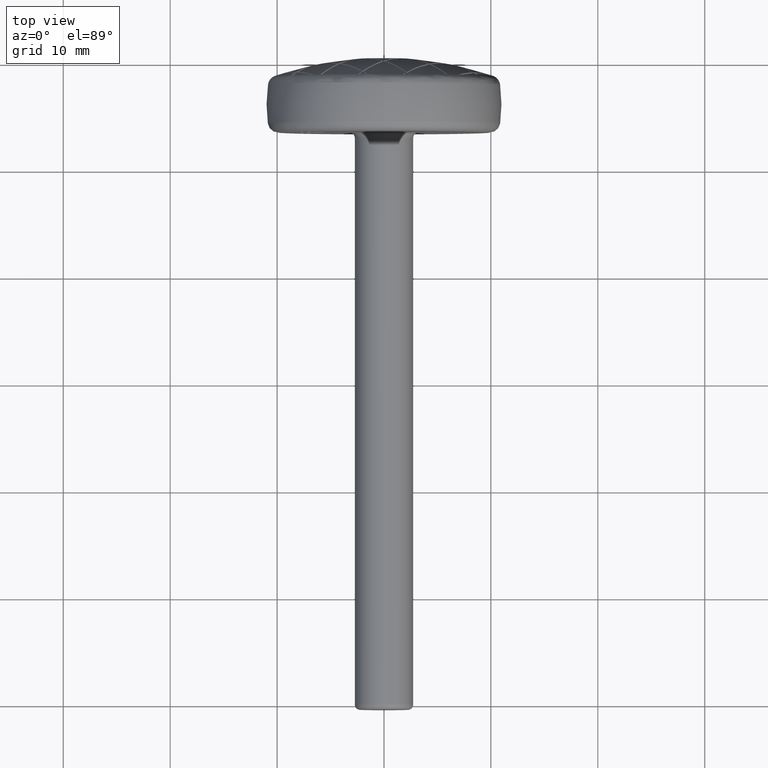
[diagram: clean part render]
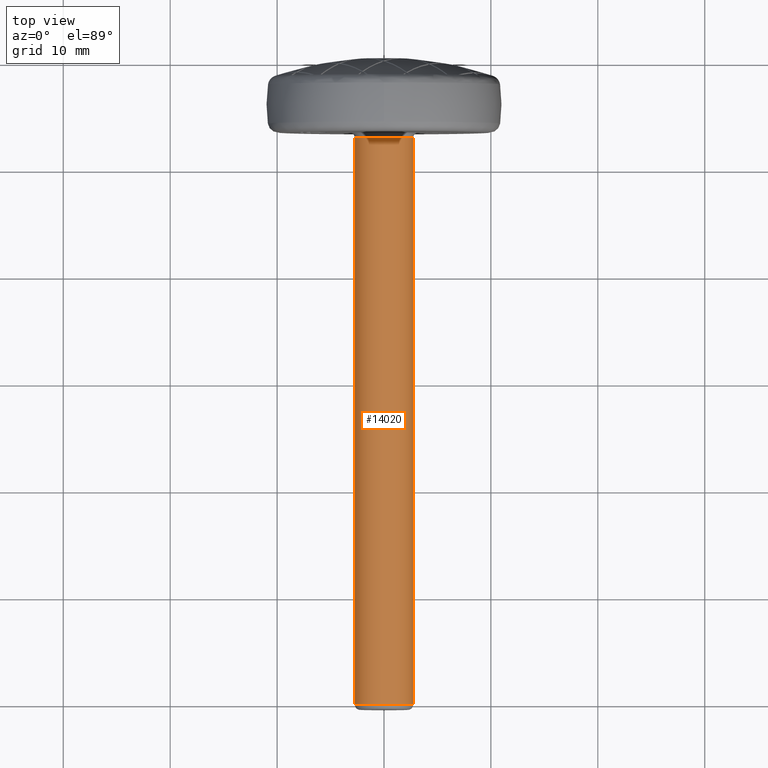
[diagram: same view with one face highlighted and labeled with its STEP entity id]
A machine part, top view. The second image highlights one B-rep face of the part: STEP entity #14020.
In plain terms, the highlighted cylindrical surface (bore or boss wall) has radius 2.75 mm, axis along (-0, -1, -0).
Its self-contained STEP definition (entity closure, byte-faithful):
#60 = DIRECTION ( 'NONE',  ( 0.000000000000000000, 0.000000000000000000, -1.000000000000000000 ) ) ;
#611 = VERTEX_POINT ( 'NONE', #1346 ) ;
#680 = CYLINDRICAL_SURFACE ( 'NONE', #12997, 2.749999999999992895 ) ;
#842 = EDGE_LOOP ( 'NONE', ( #8395 ) ) ;
#1346 = CARTESIAN_POINT ( 'NONE',  ( 0.000000000000000000, 23.00000000000000355, -2.749999999999992895 ) ) ;
#1818 = AXIS2_PLACEMENT_3D ( 'NONE', #14144, #13064, #7707 ) ;
#2465 = DIRECTION ( 'NONE',  ( -0.000000000000000000, -1.000000000000000000, -0.000000000000000000 ) ) ;
#5659 = VERTEX_POINT ( 'NONE', #9158 ) ;
#7707 = DIRECTION ( 'NONE',  ( 0.000000000000000000, 0.000000000000000000, -1.000000000000000000 ) ) ;
#8395 = ORIENTED_EDGE ( 'NONE', *, *, #15901, .T. ) ;
#9128 = DIRECTION ( 'NONE',  ( -0.000000000000000000, -1.000000000000000000, -0.000000000000000000 ) ) ;
#9158 = CARTESIAN_POINT ( 'NONE',  ( 0.000000000000000000, -29.99999999999999289, -2.749999999999992895 ) ) ;
#9364 = FACE_OUTER_BOUND ( 'NONE', #842, .T. ) ;
#9527 = ORIENTED_EDGE ( 'NONE', *, *, #10976, .T. ) ;
#9574 = DIRECTION ( 'NONE',  ( 0.000000000000000000, 0.000000000000000000, -1.000000000000000000 ) ) ;
#10203 = CARTESIAN_POINT ( 'NONE',  ( 0.000000000000000000, 23.00000000000000355, 0.000000000000000000 ) ) ;
#10976 = EDGE_CURVE ( 'NONE', #5659, #5659, #15899, .T. ) ;
#11283 = EDGE_LOOP ( 'NONE', ( #9527 ) ) ;
#11925 = CARTESIAN_POINT ( 'NONE',  ( 0.000000000000000000, -30.49999999999999645, 0.000000000000000000 ) ) ;
#12782 = FACE_OUTER_BOUND ( 'NONE', #11283, .T. ) ;
#12997 = AXIS2_PLACEMENT_3D ( 'NONE', #11925, #9128, #9574 ) ;
#13064 = DIRECTION ( 'NONE',  ( 0.000000000000000000, 1.000000000000000000, 0.000000000000000000 ) ) ;
#14020 = ADVANCED_FACE ( 'NONE', ( #12782, #9364 ), #680, .T. ) ;
#14144 = CARTESIAN_POINT ( 'NONE',  ( 0.000000000000000000, -29.99999999999999289, 0.000000000000000000 ) ) ;
#14964 = AXIS2_PLACEMENT_3D ( 'NONE', #10203, #2465, #60 ) ;
#15899 = CIRCLE ( 'NONE', #1818, 2.749999999999992895 ) ;
#15901 = EDGE_CURVE ( 'NONE', #611, #611, #15993, .T. ) ;
#15993 = CIRCLE ( 'NONE', #14964, 2.749999999999992895 ) ;